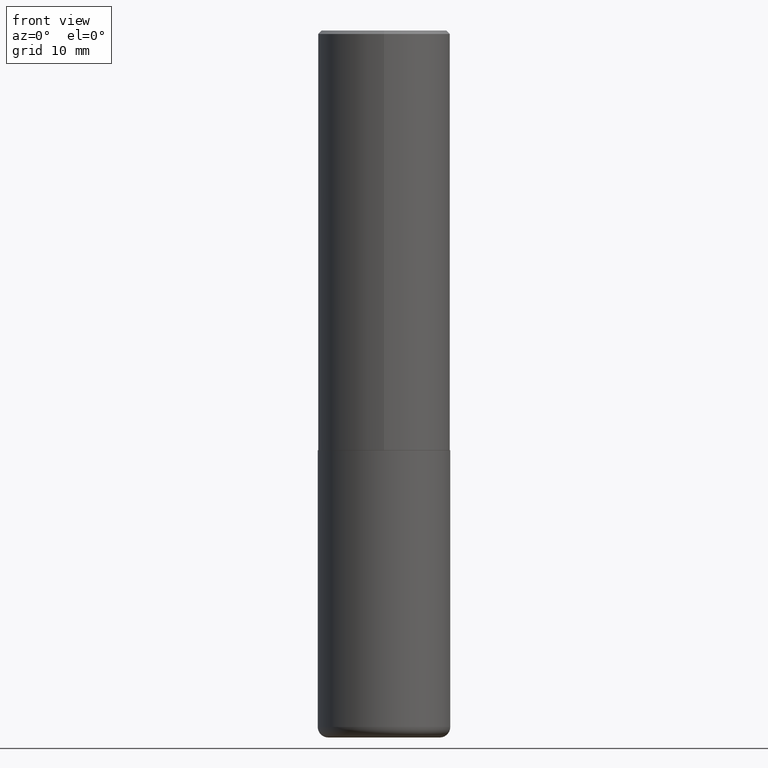
[diagram: clean part render]
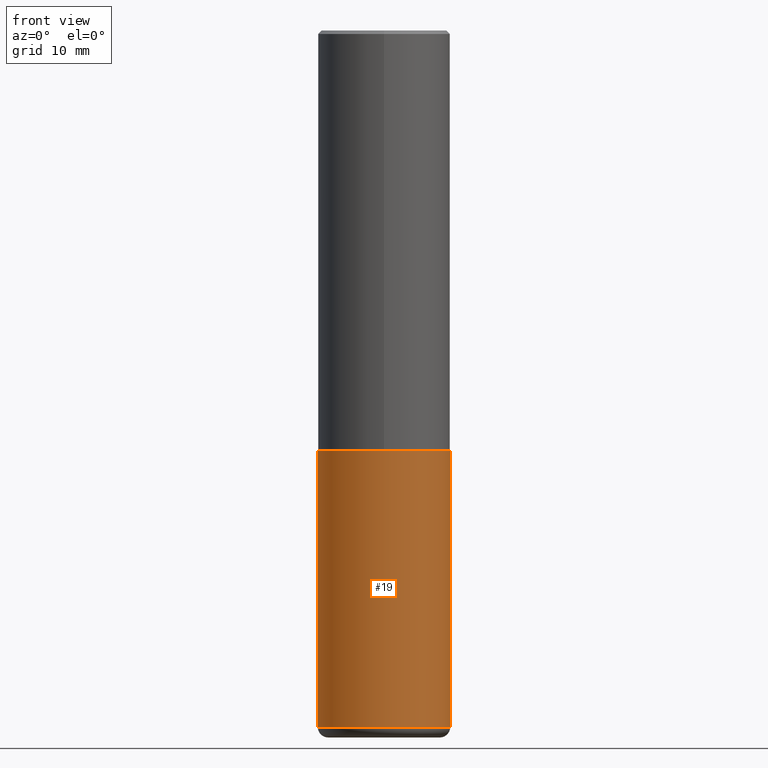
[diagram: same view with one face highlighted and labeled with its STEP entity id]
A machine part, front view. The second image highlights one B-rep face of the part: STEP entity #19.
In plain terms, the highlighted cylindrical surface (partial cylindrical patch) has radius 9.525 mm, axis along (-0, 0, 1).
Its self-contained STEP definition (entity closure, byte-faithful):
#3 = DIRECTION ( 'NONE',  ( -2.445468806185136877E-29, 3.491481338843145188E-15, 1.000000000000000000 ) ) ;
#10 = ORIENTED_EDGE ( 'NONE', *, *, #262, .F. ) ;
#17 = AXIS2_PLACEMENT_3D ( 'NONE', #397, #234, #108 ) ;
#19 = ADVANCED_FACE ( 'NONE', ( #121 ), #311, .T. ) ;
#23 = ORIENTED_EDGE ( 'NONE', *, *, #224, .F. ) ;
#28 = DIRECTION ( 'NONE',  ( -2.445468806185136877E-29, 3.491481338843145188E-15, 1.000000000000000000 ) ) ;
#56 = DIRECTION ( 'NONE',  ( 1.000000000000000000, -6.982962677686265922E-15, 4.876176775795935793E-29 ) ) ;
#63 = EDGE_LOOP ( 'NONE', ( #23, #404, #263, #10 ) ) ;
#66 = CARTESIAN_POINT ( 'NONE',  ( 0.3750000000000000555, -2.618611004132350016E-15, 1.828566290923476203E-29 ) ) ;
#74 = AXIS2_PLACEMENT_3D ( 'NONE', #265, #128, #403 ) ;
#83 = CIRCLE ( 'NONE', #17, 0.3750000000000000555 ) ;
#108 = DIRECTION ( 'NONE',  ( 1.000000000000000000, -6.982962677686266711E-15, 0.000000000000000000 ) ) ;
#113 = CARTESIAN_POINT ( 'NONE',  ( -0.3750000000000000555, -8.359817068296857158E-15, -2.375000000000000000 ) ) ;
#121 = FACE_OUTER_BOUND ( 'NONE', #63, .T. ) ;
#128 = DIRECTION ( 'NONE',  ( -2.445468806185136597E-29, 3.491481338843145583E-15, 1.000000000000000000 ) ) ;
#193 = EDGE_CURVE ( 'NONE', #231, #385, #353, .T. ) ;
#224 = EDGE_CURVE ( 'NONE', #318, #270, #316, .T. ) ;
#227 = VECTOR ( 'NONE', #28, 39.37007874015748143 ) ;
#231 = VERTEX_POINT ( 'NONE', #303 ) ;
#234 = DIRECTION ( 'NONE',  ( -2.445468806185136597E-29, 3.491481338843145583E-15, 1.000000000000000000 ) ) ;
#239 = CIRCLE ( 'NONE', #74, 0.3750000000000000555 ) ;
#240 = CARTESIAN_POINT ( 'NONE',  ( 0.000000000000000000, 0.000000000000000000, 0.000000000000000000 ) ) ;
#262 = EDGE_CURVE ( 'NONE', #270, #385, #83, .T. ) ;
#263 = ORIENTED_EDGE ( 'NONE', *, *, #193, .T. ) ;
#265 = CARTESIAN_POINT ( 'NONE',  ( 9.635147096369438236E-29, -1.375643647504199401E-14, -3.939999999999999947 ) ) ;
#270 = VERTEX_POINT ( 'NONE', #113 ) ;
#300 = AXIS2_PLACEMENT_3D ( 'NONE', #240, #375, #56 ) ;
#303 = CARTESIAN_POINT ( 'NONE',  ( 0.3750000000000001110, -1.637504747917434403E-14, -3.939999999999999947 ) ) ;
#311 = CYLINDRICAL_SURFACE ( 'NONE', #300, 0.3750000000000000555 ) ;
#316 = LINE ( 'NONE', #323, #227 ) ;
#318 = VERTEX_POINT ( 'NONE', #348 ) ;
#323 = CARTESIAN_POINT ( 'NONE',  ( -0.3750000000000000555, 2.664535259100376091E-15, -1.844600658845589598E-29 ) ) ;
#328 = VECTOR ( 'NONE', #3, 39.37007874015748143 ) ;
#348 = CARTESIAN_POINT ( 'NONE',  ( -0.3750000000000001110, -1.109190121594161832E-14, -3.939999999999999947 ) ) ;
#353 = LINE ( 'NONE', #66, #328 ) ;
#357 = EDGE_CURVE ( 'NONE', #318, #231, #239, .T. ) ;
#375 = DIRECTION ( 'NONE',  ( -2.445468806185136597E-29, 3.491481338843145583E-15, 1.000000000000000000 ) ) ;
#385 = VERTEX_POINT ( 'NONE', #406 ) ;
#397 = CARTESIAN_POINT ( 'NONE',  ( 5.807988414689699417E-29, -8.292268179752470118E-15, -2.375000000000000000 ) ) ;
#403 = DIRECTION ( 'NONE',  ( 1.000000000000000000, -6.982962677686266711E-15, 0.000000000000000000 ) ) ;
#404 = ORIENTED_EDGE ( 'NONE', *, *, #357, .T. ) ;
#406 = CARTESIAN_POINT ( 'NONE',  ( 0.3750000000000000555, -1.091087918388482013E-14, -2.375000000000000000 ) ) ;